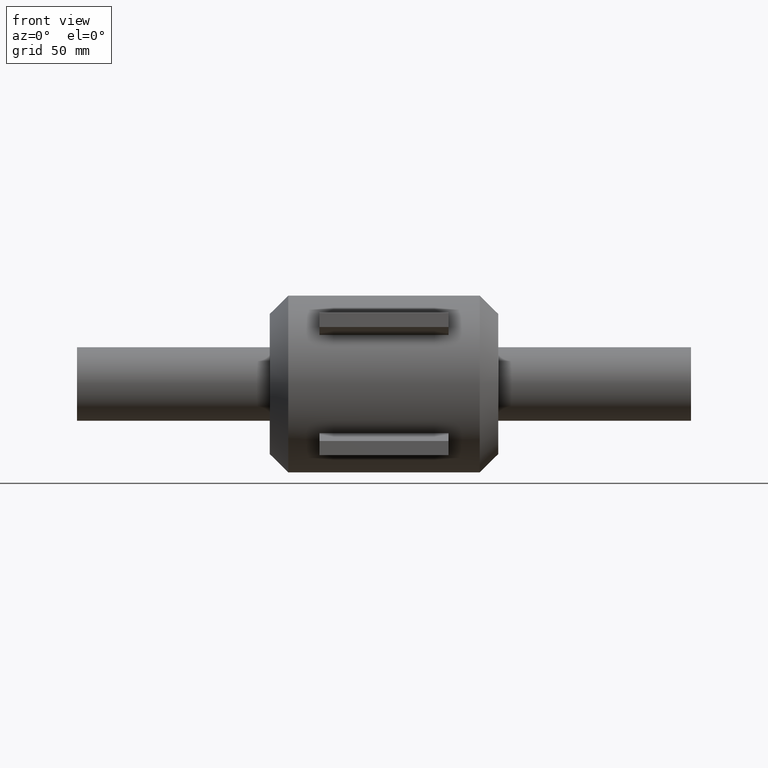
[diagram: clean part render]
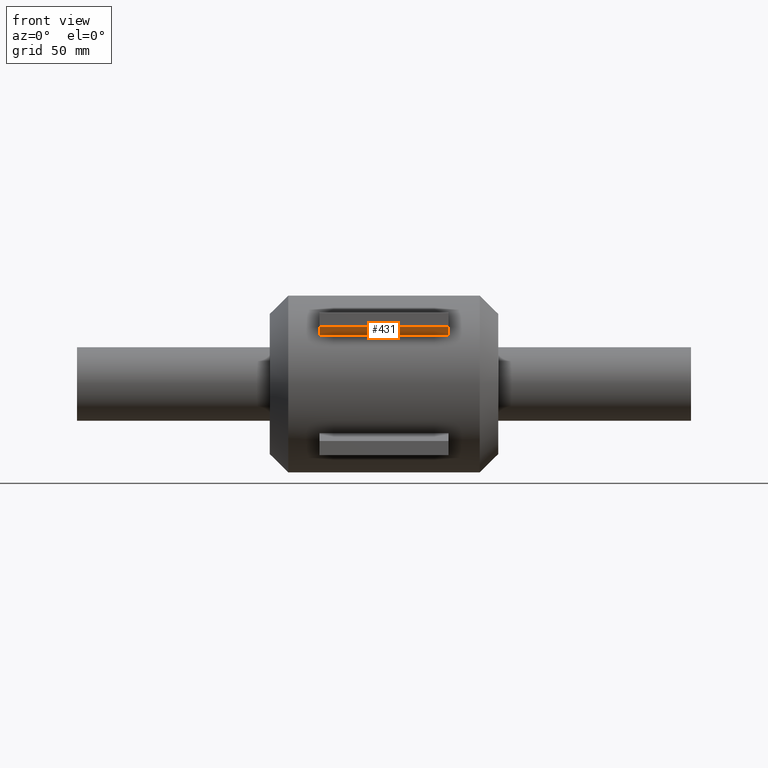
[diagram: same view with one face highlighted and labeled with its STEP entity id]
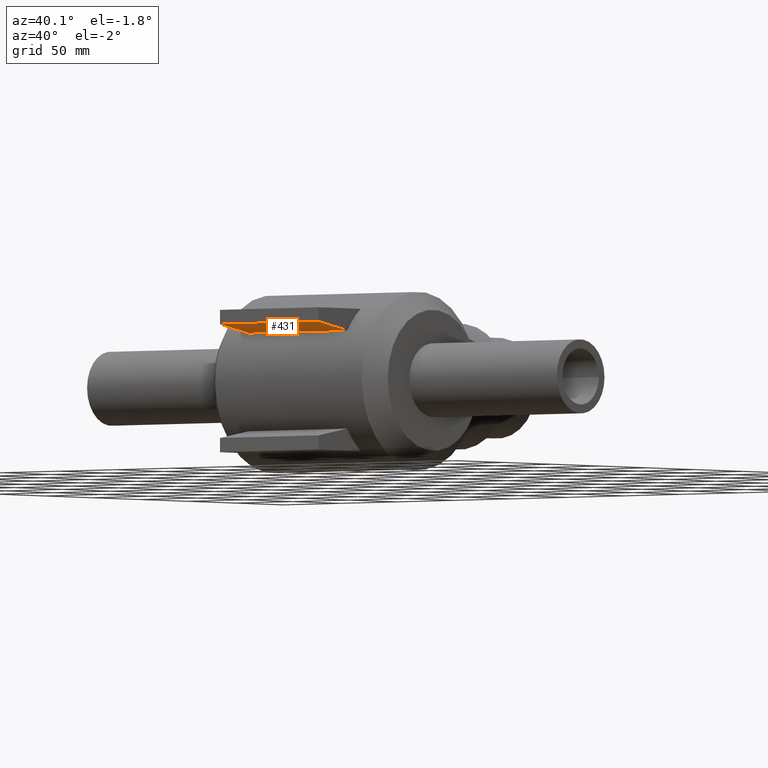
[diagram: same view with one face highlighted and labeled with its STEP entity id]
A machine part, front view. The second image highlights one B-rep face of the part: STEP entity #431.
A second angle (auxiliary view) of the same face is appended — the face is thin or edge-on in the first view.
In plain terms, the highlighted planar face has unit normal (0, -0.1736, -0.9848).
Its self-contained STEP definition (entity closure, byte-faithful):
#26=PLANE('',#481);
#39=LINE('',#852,#59);
#51=LINE('',#907,#71);
#53=LINE('',#911,#73);
#54=LINE('',#912,#74);
#59=VECTOR('',#525,87.);
#71=VECTOR('',#587,30.429027259081);
#73=VECTOR('',#591,30.429027259081);
#74=VECTOR('',#592,87.);
#130=FACE_OUTER_BOUND('',#175,.T.);
#175=EDGE_LOOP('',(#374,#375,#376,#377));
#234=VERTEX_POINT('',#845);
#237=VERTEX_POINT('',#850);
#255=VERTEX_POINT('',#906);
#256=VERTEX_POINT('',#910);
#277=EDGE_CURVE('',#237,#234,#39,.T.);
#299=EDGE_CURVE('',#234,#255,#51,.T.);
#301=EDGE_CURVE('',#256,#237,#53,.T.);
#302=EDGE_CURVE('',#255,#256,#54,.T.);
#374=ORIENTED_EDGE('',*,*,#277,.F.);
#375=ORIENTED_EDGE('',*,*,#301,.F.);
#376=ORIENTED_EDGE('',*,*,#302,.F.);
#377=ORIENTED_EDGE('',*,*,#299,.F.);
#431=ADVANCED_FACE('',(#130),#26,.T.);
#481=AXIS2_PLACEMENT_3D('',#909,#589,#590);
#525=DIRECTION('',(-1.,0.,0.));
#587=DIRECTION('',(0.,-0.984807753012208,0.17364817766693));
#589=DIRECTION('center_axis',(0.,-0.17364817766693,-0.984807753012208));
#590=DIRECTION('ref_axis',(0.,0.984807753012208,-0.17364817766693));
#591=DIRECTION('',(0.,0.984807753012208,-0.17364817766693));
#592=DIRECTION('',(1.,0.,0.));
#845=CARTESIAN_POINT('',(-43.5,-50.0332580386372,33.1160548682833));
#850=CARTESIAN_POINT('',(43.5,-50.0332580386372,33.1160548682833));
#852=CARTESIAN_POINT('',(0.,-50.0332580386372,33.1160548682833));
#906=CARTESIAN_POINT('',(-43.5,-80.,38.4));
#907=CARTESIAN_POINT('',(-43.5,-80.,38.4));
#909=CARTESIAN_POINT('Origin',(0.,-80.,38.4));
#910=CARTESIAN_POINT('',(43.5,-80.,38.4));
#911=CARTESIAN_POINT('',(43.5,-80.,38.4));
#912=CARTESIAN_POINT('',(0.,-80.,38.4));